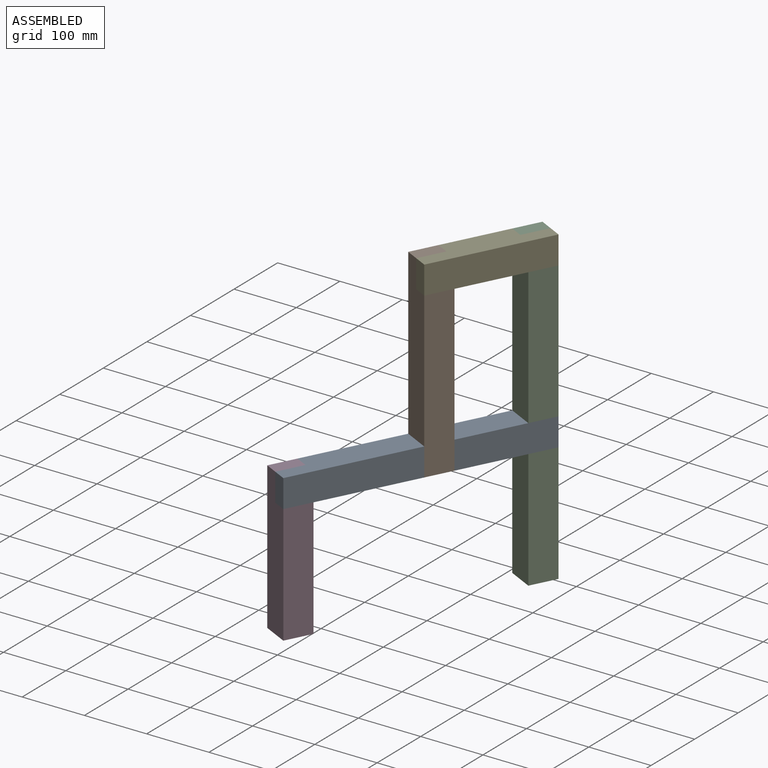
[diagram: assembled view]
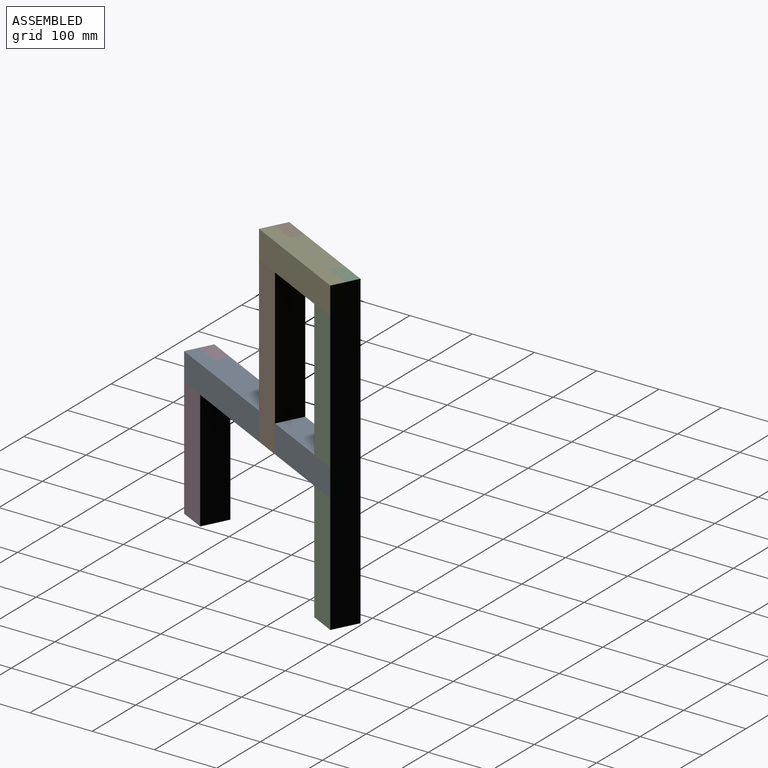
[diagram: assembled view, second angle]
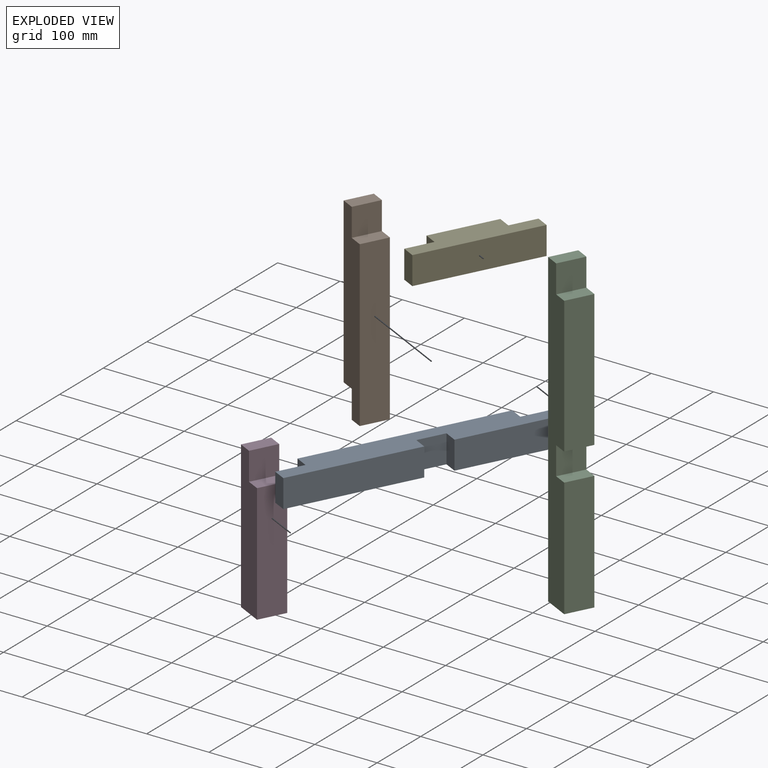
[diagram: exploded view]
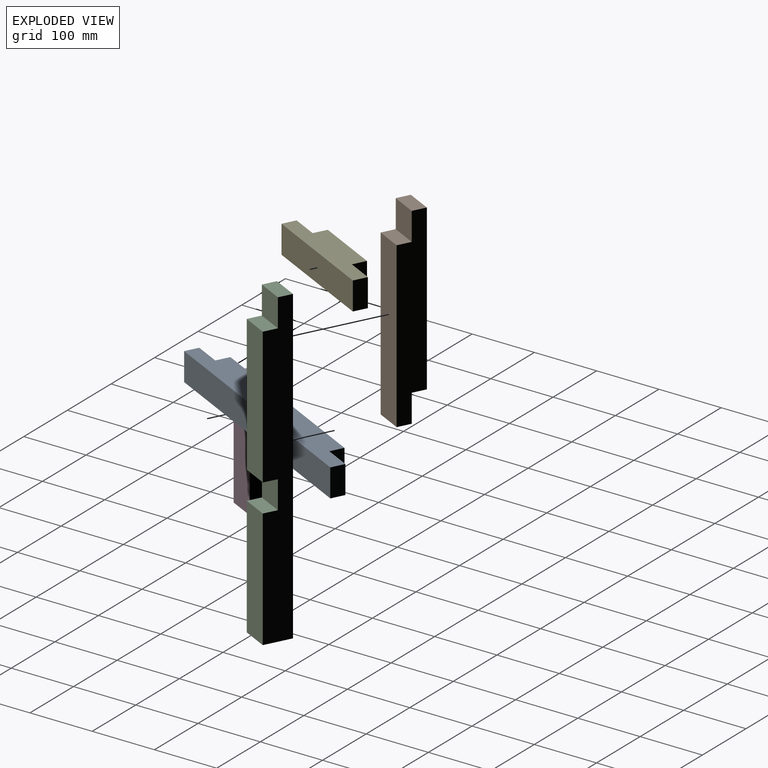
[diagram: exploded view, second angle]
ASSEMBLY  parts=5 mates=4
PART A: 14 faces, bbox 45x410x45 mm
  f0: plane 155x45mm, normal (-1,0,0), area 6975mm2, adj f1,f3,f4,f12
  f1: plane 410x45mm, normal (0,0,1), area 15412.5mm2, adj f0,f2,f4,f5,f6,f7,f8,f9
  f2: plane 45x22.5mm, normal (0,-1,0), area 1012.5mm2, adj f1,f3,f6,f8
  f3: plane 410x45mm, normal (0,0,-1), area 15412.5mm2, adj f0,f2,f4,f5,f6,f7,f8,f9
  f4: plane 45x22.5mm, normal (0,1,0), area 1012.5mm2, adj f0,f1,f3,f10
  f5: plane 320x45mm, normal (1,0,0), area 14400mm2, adj f1,f3,f7,f9
  f6: plane 210x45mm, normal (-1,0,0), area 9450mm2, adj f1,f2,f3,f11
  f7: plane 45x22.5mm, normal (0,-1,0), area 1012.5mm2, adj f1,f3,f5,f8
  f8: plane 45x45mm, normal (1,0,0), area 2025mm2, adj f1,f2,f3,f7
  f9: plane 45x22.5mm, normal (0,1,0), area 1012.5mm2, adj f1,f3,f5,f10
  f10: plane 45x45mm, normal (1,0,0), area 2025mm2, adj f1,f3,f4,f9
  f11: plane 45x22.5mm, normal (0,1,0), area 1012.5mm2, adj f1,f3,f6,f13
  f12: plane 45x22.5mm, normal (0,-1,0), area 1012.5mm2, adj f0,f1,f3,f13
  f13: plane 45x45mm, normal (-1,0,0), area 2025mm2, adj f1,f3,f11,f12
PART B: 10 faces, bbox 45x45x309 mm
  f0: plane 264x45mm, normal (1,0,0), area 11880mm2, adj f1,f4,f5,f8
  f1: plane 309x45mm, normal (0,1,0), area 11880mm2, adj f0,f2,f3,f5,f6,f7,f8,f9
  f2: plane 45x22.5mm, normal (0,0,-1), area 1012.5mm2, adj f1,f3,f4,f9
  f3: plane 264x45mm, normal (-1,0,0), area 11880mm2, adj f1,f2,f4,f6
  f4: plane 309x45mm, normal (0,-1,0), area 11880mm2, adj f0,f2,f3,f5,f6,f7,f8,f9
  f5: plane 45x22.5mm, normal (0,0,1), area 1012.5mm2, adj f0,f1,f4,f7
  f6: plane 45x22.5mm, normal (0,0,1), area 1012.5mm2, adj f1,f3,f4,f7
  f7: plane 45x45mm, normal (-1,0,0), area 2025mm2, adj f1,f4,f5,f6
  f8: plane 45x22.5mm, normal (0,0,-1), area 1012.5mm2, adj f0,f1,f4,f9
  f9: plane 45x45mm, normal (1,0,0), area 2025mm2, adj f1,f2,f4,f8
PART C: 12 faces, bbox 45x45x500 mm
  f0: plane 45x22.5mm, normal (0,0,1), area 1012.5mm2, adj f2,f4,f6,f11
  f1: plane 219x45mm, normal (1,0,0), area 9855mm2, adj f2,f4,f7,f10
  f2: plane 500x45mm, normal (0,-1,0), area 20475mm2, adj f0,f1,f3,f5,f6,f7,f8,f9
  f3: plane 45x45mm, normal (0,0,-1), area 2025mm2, adj f2,f4,f5,f6
  f4: plane 500x45mm, normal (0,1,0), area 20475mm2, adj f0,f1,f3,f5,f6,f7,f8,f9
  f5: plane 191x45mm, normal (1,0,0), area 8595mm2, adj f2,f3,f4,f8
  f6: plane 500x45mm, normal (-1,0,0), area 22500mm2, adj f0,f2,f3,f4
  f7: plane 45x22.5mm, normal (0,0,-1), area 1012.5mm2, adj f1,f2,f4,f9
  f8: plane 45x22.5mm, normal (0,0,1), area 1012.5mm2, adj f2,f4,f5,f9
  f9: plane 45x45mm, normal (1,0,0), area 2025mm2, adj f2,f4,f7,f8
  f10: plane 45x22.5mm, normal (0,0,1), area 1012.5mm2, adj f1,f2,f4,f11
  f11: plane 45x45mm, normal (1,0,0), area 2025mm2, adj f0,f2,f4,f10
PART D: 8 faces, bbox 45x45x236 mm
  f0: plane 191x45mm, normal (-1,0,0), area 8595mm2, adj f1,f3,f5,f6
  f1: plane 236x45mm, normal (0,-1,0), area 9607.5mm2, adj f0,f2,f4,f5,f6,f7
  f2: plane 236x45mm, normal (1,0,0), area 10620mm2, adj f1,f3,f4,f5
  f3: plane 236x45mm, normal (0,1,0), area 9607.5mm2, adj f0,f2,f4,f5,f6,f7
  f4: plane 45x22.5mm, normal (0,0,1), area 1012.5mm2, adj f1,f2,f3,f7
  f5: plane 45x45mm, normal (0,0,-1), area 2025mm2, adj f0,f1,f2,f3
  f6: plane 45x22.5mm, normal (0,0,1), area 1012.5mm2, adj f0,f1,f3,f7
  f7: plane 45x45mm, normal (-1,0,0), area 2025mm2, adj f1,f3,f4,f6
PART E: 10 faces, bbox 45x200x45 mm
  f0: plane 45x22.5mm, normal (0,-1,0), area 1012.5mm2, adj f1,f3,f5,f7
  f1: plane 200x45mm, normal (0,0,-1), area 6975mm2, adj f0,f2,f4,f5,f6,f7,f8,f9
  f2: plane 45x22.5mm, normal (0,1,0), area 1012.5mm2, adj f1,f3,f5,f9
  f3: plane 200x45mm, normal (0,0,1), area 6975mm2, adj f0,f2,f4,f5,f6,f7,f8,f9
  f4: plane 110x45mm, normal (1,0,0), area 4950mm2, adj f1,f3,f6,f8
  f5: plane 200x45mm, normal (-1,0,0), area 9000mm2, adj f0,f1,f2,f3
  f6: plane 45x22.5mm, normal (0,-1,0), area 1012.5mm2, adj f1,f3,f4,f7
  f7: plane 45x45mm, normal (1,0,0), area 2025mm2, adj f0,f1,f3,f6
  f8: plane 45x22.5mm, normal (0,1,0), area 1012.5mm2, adj f1,f3,f4,f9
  f9: plane 45x45mm, normal (1,0,0), area 2025mm2, adj f1,f2,f3,f8
PLACE A rot(axis=(-0.23,-0.97,0),180deg) t=(293.33,-177.01,250.43)mm
PLACE B rot(axis=(0,0,1),153deg) t=(409.2,50.14,205.43)mm
PLACE C rot(axis=(0,0,-1),27deg) t=(419.1,168.58,14.43)mm
PLACE D rot(axis=(0,0,1),153deg) t=(313.78,-136.93,14.43)mm
PLACE E rot(axis=(0,0,1),153deg) t=(479.63,188.21,469.43)mm
MATE fastened A.f8 <-> D.f7  axis (-0.89,0.45,0) through (283.51,-146.75,227.93)mm
MATE fastened B.f7 <-> E.f9  axis (0.89,-0.45,0) through (378.93,40.32,491.93)mm
MATE fastened E.f7 <-> C.f11  axis (-0.89,0.45,0) through (449.36,178.39,491.93)mm
MATE fastened A.f10 <-> C.f9  axis (-0.89,0.45,0) through (449.36,178.39,227.93)mm
